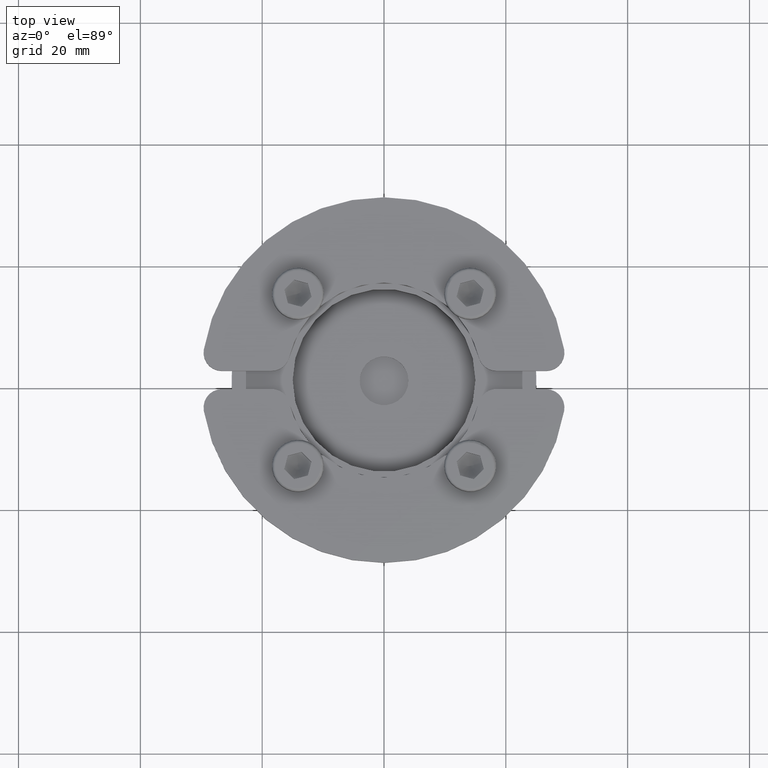
[diagram: clean part render]
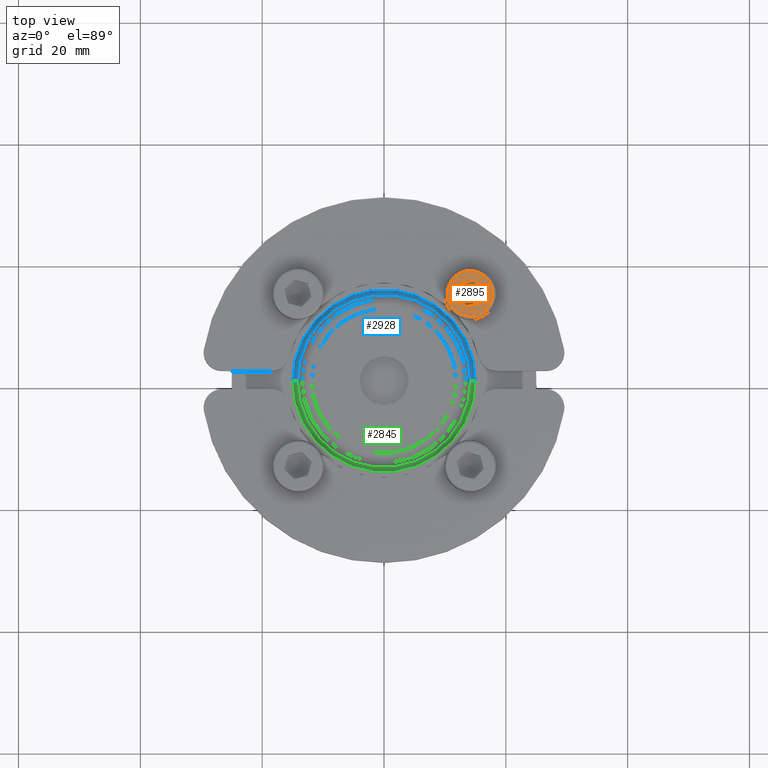
[diagram: same view with three faces highlighted in distinct colors, each labeled with its STEP entity id]
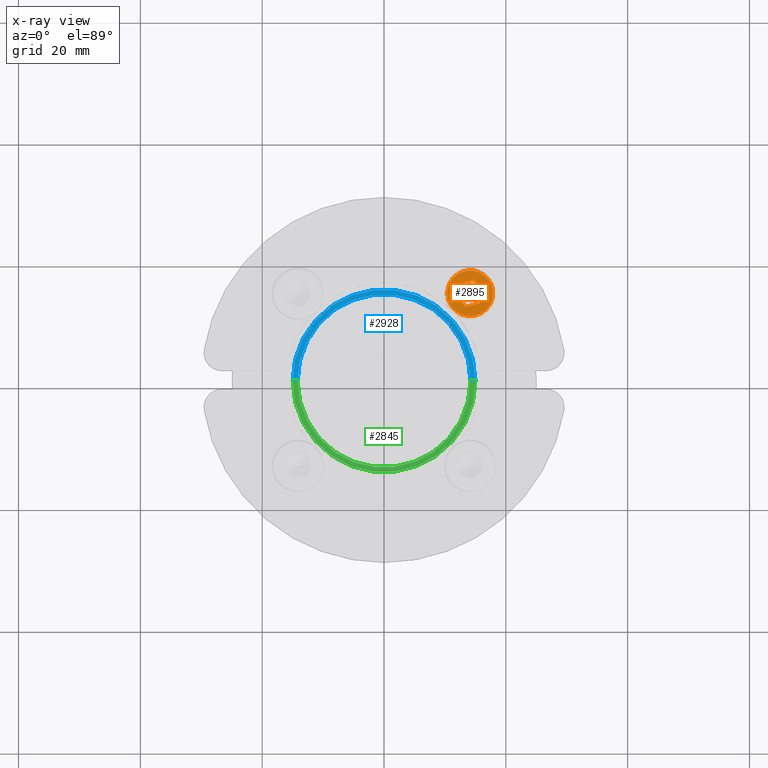
[diagram: x-ray of the same camera — body ghosted, the three highlighted faces saturated]
A machine part, top view with three faces highlighted in distinct colors.
The next image is the same camera in x-ray (body ghosted, the three faces saturated) — at least one of them is partly hidden behind the body in this view.
Their STEP definitions:

[orange] entity #2895 — the highlighted planar face has unit normal (0, 0, 1).
#23=FACE_BOUND('',#764,.T.);
#198=LINE('',#4835,#388);
#201=LINE('',#4840,#391);
#202=LINE('',#4843,#392);
#204=LINE('',#4847,#394);
#206=LINE('',#4851,#396);
#208=LINE('',#4854,#398);
#388=VECTOR('',#3877,10.);
#391=VECTOR('',#3882,10.);
#392=VECTOR('',#3885,10.);
#394=VECTOR('',#3889,10.);
#396=VECTOR('',#3893,10.);
#398=VECTOR('',#3897,10.);
#588=FACE_OUTER_BOUND('',#763,.T.);
#763=EDGE_LOOP('',(#2163,#2164));
#764=EDGE_LOOP('',(#2165,#2166,#2167,#2168,#2169,#2170));
#950=CIRCLE('',#3196,3.75);
#951=CIRCLE('',#3197,3.75);
#1206=VERTEX_POINT('',#4832);
#1207=VERTEX_POINT('',#4834);
#1208=VERTEX_POINT('',#4838);
#1209=VERTEX_POINT('',#4842);
#1210=VERTEX_POINT('',#4846);
#1211=VERTEX_POINT('',#4850);
#1217=VERTEX_POINT('',#4869);
#1218=VERTEX_POINT('',#4870);
#1543=EDGE_CURVE('',#1207,#1206,#198,.T.);
#1546=EDGE_CURVE('',#1206,#1208,#201,.T.);
#1547=EDGE_CURVE('',#1209,#1207,#202,.T.);
#1549=EDGE_CURVE('',#1210,#1209,#204,.T.);
#1551=EDGE_CURVE('',#1211,#1210,#206,.T.);
#1553=EDGE_CURVE('',#1208,#1211,#208,.T.);
#1561=EDGE_CURVE('',#1217,#1218,#950,.T.);
#1562=EDGE_CURVE('',#1218,#1217,#951,.T.);
#2163=ORIENTED_EDGE('',*,*,#1561,.F.);
#2164=ORIENTED_EDGE('',*,*,#1562,.F.);
#2165=ORIENTED_EDGE('',*,*,#1549,.T.);
#2166=ORIENTED_EDGE('',*,*,#1547,.T.);
#2167=ORIENTED_EDGE('',*,*,#1543,.T.);
#2168=ORIENTED_EDGE('',*,*,#1546,.T.);
#2169=ORIENTED_EDGE('',*,*,#1553,.T.);
#2170=ORIENTED_EDGE('',*,*,#1551,.T.);
#2578=PLANE('',#3195);
#2895=ADVANCED_FACE('',(#588,#23),#2578,.T.);
#3195=AXIS2_PLACEMENT_3D('',#4868,#3913,#3914);
#3196=AXIS2_PLACEMENT_3D('',#4871,#3915,#3916);
#3197=AXIS2_PLACEMENT_3D('',#4872,#3917,#3918);
#3877=DIRECTION('',(0.258819045102519,0.965925826289069,-2.64309869767756E-14));
#3882=DIRECTION('',(0.965925826289068,0.258819045102522,-3.62956231324332E-14));
#3885=DIRECTION('',(-0.707106781186549,0.707106781186546,9.86463615565765E-15));
#3889=DIRECTION('',(-0.965925826289068,-0.258819045102523,3.62956231324332E-14));
#3893=DIRECTION('',(-0.258819045102519,-0.965925826289069,2.64309869767755E-14));
#3897=DIRECTION('',(0.707106781186549,-0.707106781186546,-9.86463615565763E-15));
#3913=DIRECTION('center_axis',(3.25833824632812E-14,1.86326802240743E-14,
1.));
#3914=DIRECTION('ref_axis',(-0.965925826289068,-0.258819045102522,3.62956231324332E-14));
#3915=DIRECTION('center_axis',(-3.25833824632812E-14,-1.86326802240743E-14,
-1.));
#3916=DIRECTION('ref_axis',(-0.258819045102523,0.965925826289068,-9.56458710606221E-15));
#3917=DIRECTION('center_axis',(-3.25833824632812E-14,-1.86326802240743E-14,
-1.));
#3918=DIRECTION('ref_axis',(-0.258819045102523,0.965925826289068,-9.56458710606221E-15));
#4832=CARTESIAN_POINT('',(12.5091424618756,15.7751287855865,8.00000000000003));
#4834=CARTESIAN_POINT('',(11.9114254804302,13.5444186422856,8.0000000000001));
#4835=CARTESIAN_POINT('',(12.3597132165142,15.2174512497613,8.00000000000005));
#4838=CARTESIAN_POINT('',(14.7398526051764,16.3728457670318,7.99999999999995));
#4840=CARTESIAN_POINT('',(14.1821750693512,16.2234165216705,7.99999999999997));
#4842=CARTESIAN_POINT('',(13.5444186422857,11.9114254804302,8.00000000000007));
#4843=CARTESIAN_POINT('',(12.3196737708941,13.1361703518218,8.00000000000009));
#4846=CARTESIAN_POINT('',(15.7751287855865,12.5091424618756,7.99999999999999));
#4847=CARTESIAN_POINT('',(14.1020961781109,12.0608547257915,8.00000000000005));
#4850=CARTESIAN_POINT('',(16.3728457670319,14.7398526051764,7.99999999999993));
#4851=CARTESIAN_POINT('',(15.9245580309478,13.0668199977008,7.99999999999997));
#4854=CARTESIAN_POINT('',(15.964597476568,15.1481008956403,7.99999999999993));
#4868=CARTESIAN_POINT('Origin',(14.9909845852966,10.9741881712163,8.00000000000004));
#4869=CARTESIAN_POINT('',(15.1127070428655,10.519913775147,8.00000000000005));
#4870=CARTESIAN_POINT('',(10.519913775147,13.1715642045966,8.00000000000015));
#4871=CARTESIAN_POINT('Origin',(14.142135623731,14.142135623731,8.00000000000001));
#4872=CARTESIAN_POINT('Origin',(14.142135623731,14.142135623731,8.00000000000001));

[blue] entity #2928 — the highlighted planar face has unit normal (0, 0, 1).
#132=LINE('',#4585,#322);
#133=LINE('',#4589,#323);
#322=VECTOR('',#3633,10.);
#323=VECTOR('',#3636,10.);
#621=FACE_OUTER_BOUND('',#798,.T.);
#798=EDGE_LOOP('',(#2338,#2339,#2340,#2341));
#991=CIRCLE('',#3270,15.);
#992=CIRCLE('',#3271,14.2142857142857);
#1132=VERTEX_POINT('',#4583);
#1133=VERTEX_POINT('',#4584);
#1134=VERTEX_POINT('',#4586);
#1135=VERTEX_POINT('',#4588);
#1424=EDGE_CURVE('',#1132,#1133,#132,.T.);
#1426=EDGE_CURVE('',#1135,#1134,#133,.T.);
#1637=EDGE_CURVE('',#1133,#1134,#991,.T.);
#1638=EDGE_CURVE('',#1132,#1135,#992,.T.);
#2338=ORIENTED_EDGE('',*,*,#1426,.T.);
#2339=ORIENTED_EDGE('',*,*,#1637,.F.);
#2340=ORIENTED_EDGE('',*,*,#1424,.F.);
#2341=ORIENTED_EDGE('',*,*,#1638,.T.);
#2601=PLANE('',#3269);
#2928=ADVANCED_FACE('',(#621),#2601,.T.);
#3269=AXIS2_PLACEMENT_3D('',#5034,#4089,#4090);
#3270=AXIS2_PLACEMENT_3D('',#5035,#4091,#4092);
#3271=AXIS2_PLACEMENT_3D('',#5036,#4093,#4094);
#3633=DIRECTION('',(-1.,2.22044604925031E-16,5.6520444890008E-15));
#3636=DIRECTION('',(1.,-9.9579925010296E-17,5.6520444890008E-15));
#4089=DIRECTION('center_axis',(0.,0.,1.));
#4090=DIRECTION('ref_axis',(2.22044604925031E-16,1.,0.));
#4091=DIRECTION('center_axis',(0.,0.,-1.));
#4092=DIRECTION('ref_axis',(-0.999444290037663,0.0333333333333333,0.));
#4093=DIRECTION('center_axis',(0.,0.,-1.));
#4094=DIRECTION('ref_axis',(-1.,2.22044604925031E-16,0.));
#4583=CARTESIAN_POINT('',(-14.2142857142857,3.15620545572009E-15,-5.5));
#4584=CARTESIAN_POINT('',(-15.,3.33066907387547E-15,-5.5));
#4585=CARTESIAN_POINT('',(-14.2142857142857,3.15620545572009E-15,-5.50000000000001));
#4586=CARTESIAN_POINT('',(15.,-1.49369887515444E-15,-5.50000000000001));
#4588=CARTESIAN_POINT('',(14.2142857142857,-1.41545750550349E-15,-5.50000000000001));
#4589=CARTESIAN_POINT('',(14.2142857142857,-1.41545750550349E-15,-5.50000000000001));
#5034=CARTESIAN_POINT('Origin',(-14.6071428571429,3.24343726479778E-15,
-5.5));
#5035=CARTESIAN_POINT('Origin',(0.,0.,-5.5));
#5036=CARTESIAN_POINT('Origin',(0.,0.,-5.50000000000001));

[green] entity #2845 — the highlighted planar face has unit normal (0, 0, 1).
#132=LINE('',#4585,#322);
#133=LINE('',#4589,#323);
#322=VECTOR('',#3633,10.);
#323=VECTOR('',#3636,10.);
#538=FACE_OUTER_BOUND('',#710,.T.);
#710=EDGE_LOOP('',(#1934,#1935,#1936,#1937));
#898=CIRCLE('',#3094,15.);
#899=CIRCLE('',#3095,14.2142857142857);
#1132=VERTEX_POINT('',#4583);
#1133=VERTEX_POINT('',#4584);
#1134=VERTEX_POINT('',#4586);
#1135=VERTEX_POINT('',#4588);
#1424=EDGE_CURVE('',#1132,#1133,#132,.T.);
#1425=EDGE_CURVE('',#1134,#1133,#898,.T.);
#1426=EDGE_CURVE('',#1135,#1134,#133,.T.);
#1427=EDGE_CURVE('',#1135,#1132,#899,.T.);
#1934=ORIENTED_EDGE('',*,*,#1424,.T.);
#1935=ORIENTED_EDGE('',*,*,#1425,.F.);
#1936=ORIENTED_EDGE('',*,*,#1426,.F.);
#1937=ORIENTED_EDGE('',*,*,#1427,.T.);
#2546=PLANE('',#3093);
#2845=ADVANCED_FACE('',(#538),#2546,.T.);
#3093=AXIS2_PLACEMENT_3D('',#4582,#3631,#3632);
#3094=AXIS2_PLACEMENT_3D('',#4587,#3634,#3635);
#3095=AXIS2_PLACEMENT_3D('',#4590,#3637,#3638);
#3631=DIRECTION('center_axis',(0.,0.,1.));
#3632=DIRECTION('ref_axis',(-3.44509284839767E-16,-1.,0.));
#3633=DIRECTION('',(-1.,2.22044604925031E-16,5.6520444890008E-15));
#3634=DIRECTION('center_axis',(0.,0.,-1.));
#3635=DIRECTION('ref_axis',(0.999444290037663,-0.0333333333333335,0.));
#3636=DIRECTION('',(1.,-9.9579925010296E-17,5.6520444890008E-15));
#3637=DIRECTION('center_axis',(0.,0.,-1.));
#3638=DIRECTION('ref_axis',(1.,-3.44509284839767E-16,0.));
#4582=CARTESIAN_POINT('Origin',(14.6071428571429,-5.03229633926659E-15,
-5.5));
#4583=CARTESIAN_POINT('',(-14.2142857142857,3.15620545572009E-15,-5.5));
#4584=CARTESIAN_POINT('',(-15.,3.33066907387547E-15,-5.5));
#4585=CARTESIAN_POINT('',(-14.2142857142857,3.15620545572009E-15,-5.50000000000001));
#4586=CARTESIAN_POINT('',(15.,-1.49369887515444E-15,-5.50000000000001));
#4587=CARTESIAN_POINT('Origin',(0.,0.,-5.5));
#4588=CARTESIAN_POINT('',(14.2142857142857,-1.41545750550349E-15,-5.50000000000001));
#4589=CARTESIAN_POINT('',(14.2142857142857,-1.41545750550349E-15,-5.50000000000001));
#4590=CARTESIAN_POINT('Origin',(0.,0.,-5.50000000000001));